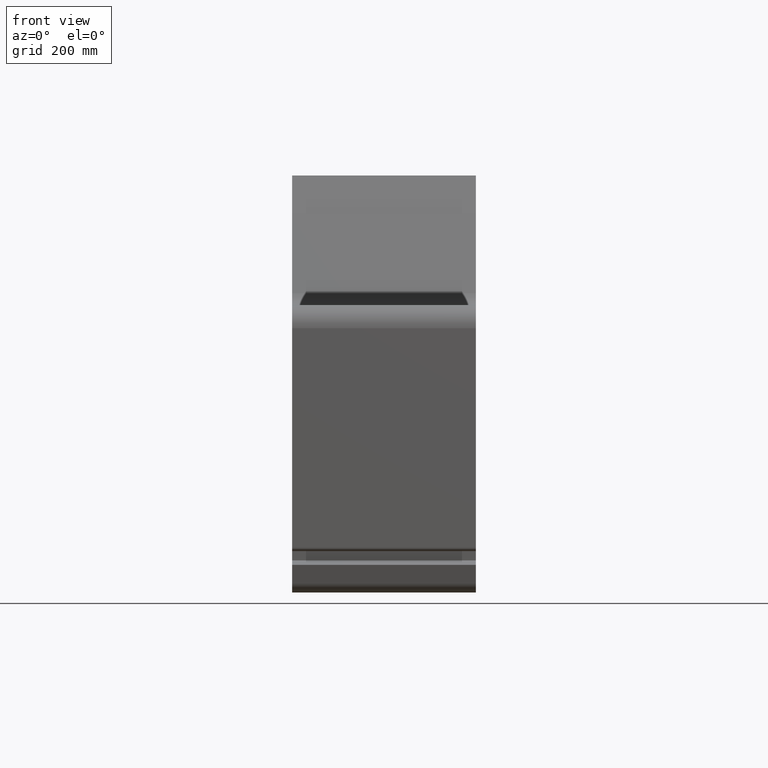
[diagram: clean part render]
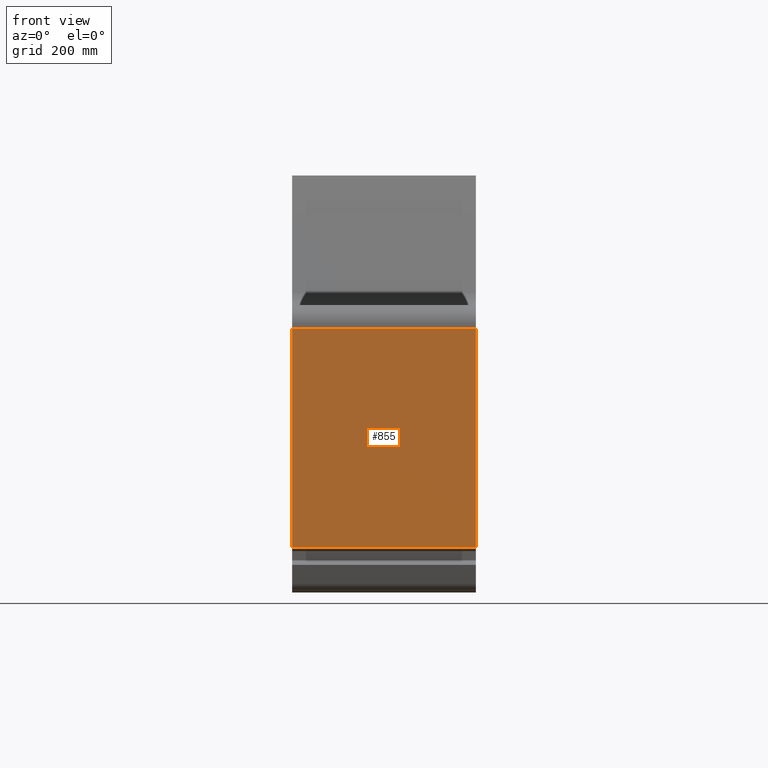
[diagram: same view with one face highlighted and labeled with its STEP entity id]
A machine part, front view. The second image highlights one B-rep face of the part: STEP entity #855.
In plain terms, the highlighted planar face has unit normal (0, -1, 0).
Its self-contained STEP definition (entity closure, byte-faithful):
#797=CARTESIAN_POINT('',(400.0,-835.0,30.499999999999972));
#798=VERTEX_POINT('',#797);
#806=CARTESIAN_POINT('',(0.0,-835.0,30.499999999999972));
#807=VERTEX_POINT('',#806);
#808=CARTESIAN_POINT('',(0.0,-835.0,30.499999999999972));
#809=DIRECTION('',(1.0,0.0,0.0));
#810=VECTOR('',#809,400.0);
#811=LINE('',#808,#810);
#812=EDGE_CURVE('',#807,#798,#811,.T.);
#825=CARTESIAN_POINT('',(0.0,-835.0,30.499999999999972));
#826=DIRECTION('',(0.0,-1.0,0.0));
#827=DIRECTION('',(0.0,0.0,-1.0));
#828=AXIS2_PLACEMENT_3D('',#825,#826,#827);
#829=PLANE('',#828);
#830=CARTESIAN_POINT('',(400.0,-835.00000000000011,507.50000000000023));
#831=VERTEX_POINT('',#830);
#832=CARTESIAN_POINT('',(400.0,-835.0,30.5));
#833=DIRECTION('',(0.0,0.0,1.0));
#834=VECTOR('',#833,477.00000000000023);
#835=LINE('',#832,#834);
#836=EDGE_CURVE('',#798,#831,#835,.T.);
#837=ORIENTED_EDGE('',*,*,#836,.T.);
#838=CARTESIAN_POINT('',(0.0,-835.00000000000011,507.50000000000023));
#839=VERTEX_POINT('',#838);
#840=CARTESIAN_POINT('',(0.0,-835.00000000000011,507.50000000000023));
#841=DIRECTION('',(1.0,0.0,0.0));
#842=VECTOR('',#841,400.0);
#843=LINE('',#840,#842);
#844=EDGE_CURVE('',#839,#831,#843,.T.);
#845=ORIENTED_EDGE('',*,*,#844,.F.);
#846=CARTESIAN_POINT('',(0.0,-835.00000000000011,507.50000000000023));
#847=DIRECTION('',(0.0,0.0,-1.0));
#848=VECTOR('',#847,477.00000000000023);
#849=LINE('',#846,#848);
#850=EDGE_CURVE('',#839,#807,#849,.T.);
#851=ORIENTED_EDGE('',*,*,#850,.T.);
#852=ORIENTED_EDGE('',*,*,#812,.T.);
#853=EDGE_LOOP('',(#837,#845,#851,#852));
#854=FACE_OUTER_BOUND('',#853,.T.);
#855=ADVANCED_FACE('',(#854),#829,.T.);